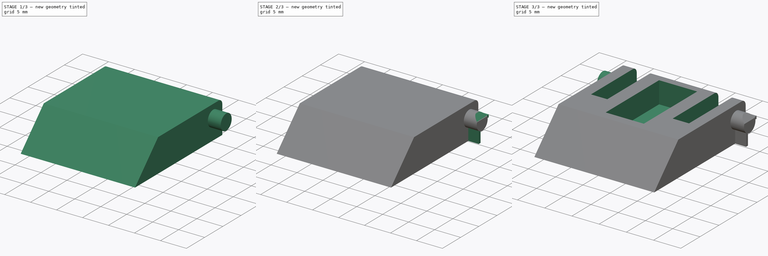
[diagram: build sequence overview — one tinted view per stage of 3, left to right]
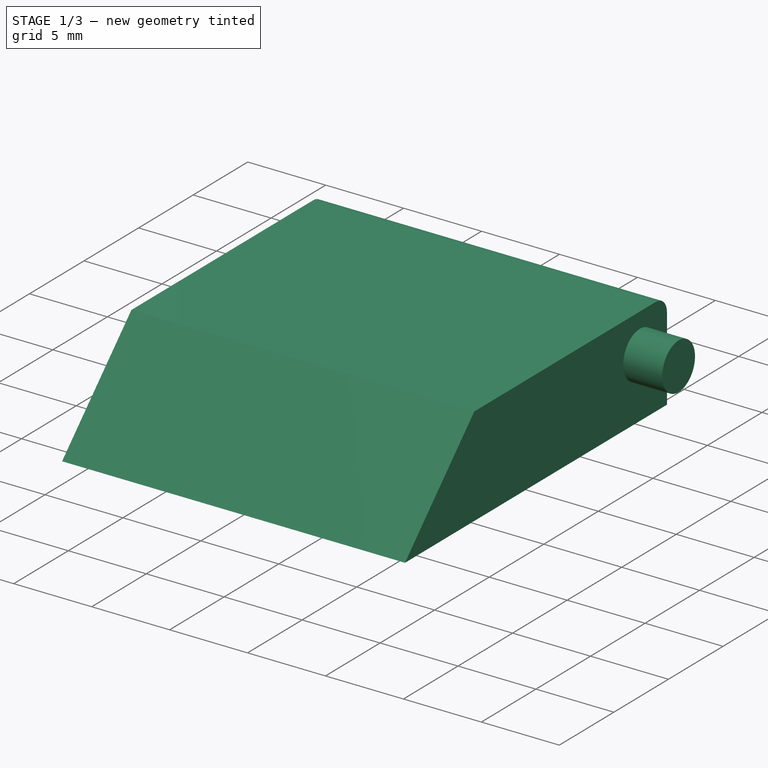
[diagram: stage 1 of 3 — iso view after this stage's code; geometry added in this stage tinted green]
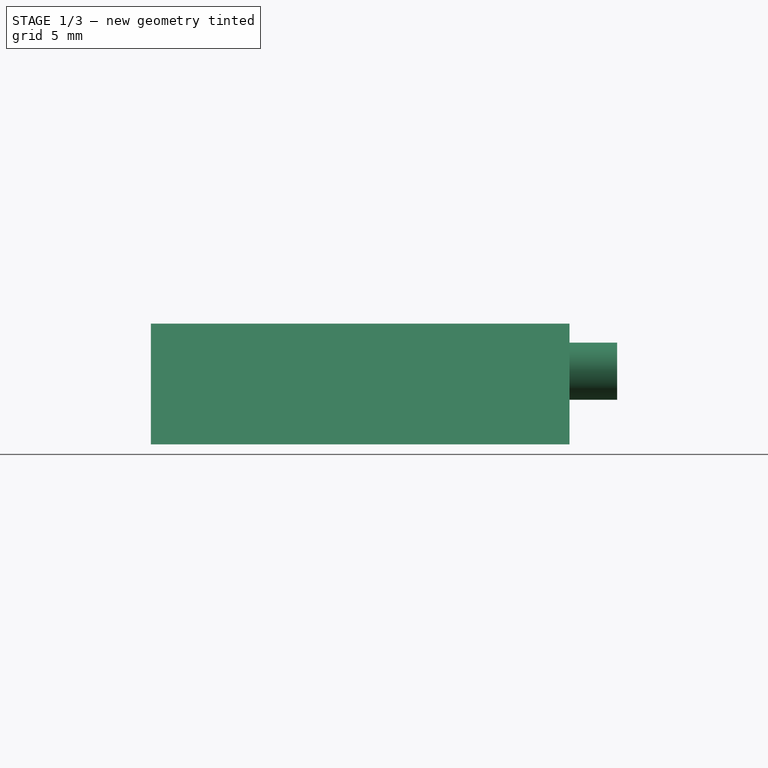
[diagram: stage 1 of 3 — front view after this stage's code; geometry added in this stage tinted green]
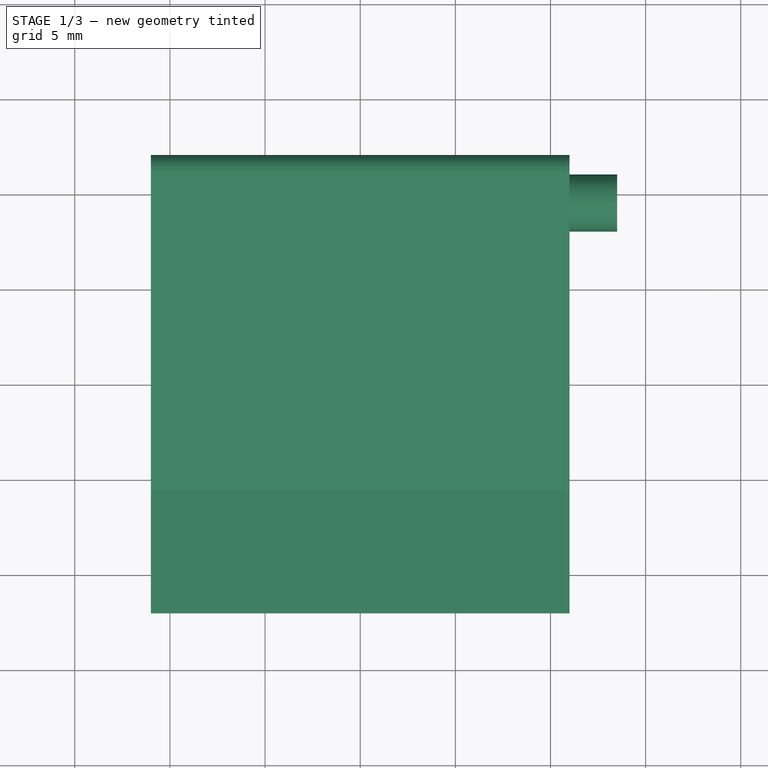
[diagram: stage 1 of 3 — top view after this stage's code; geometry added in this stage tinted green]
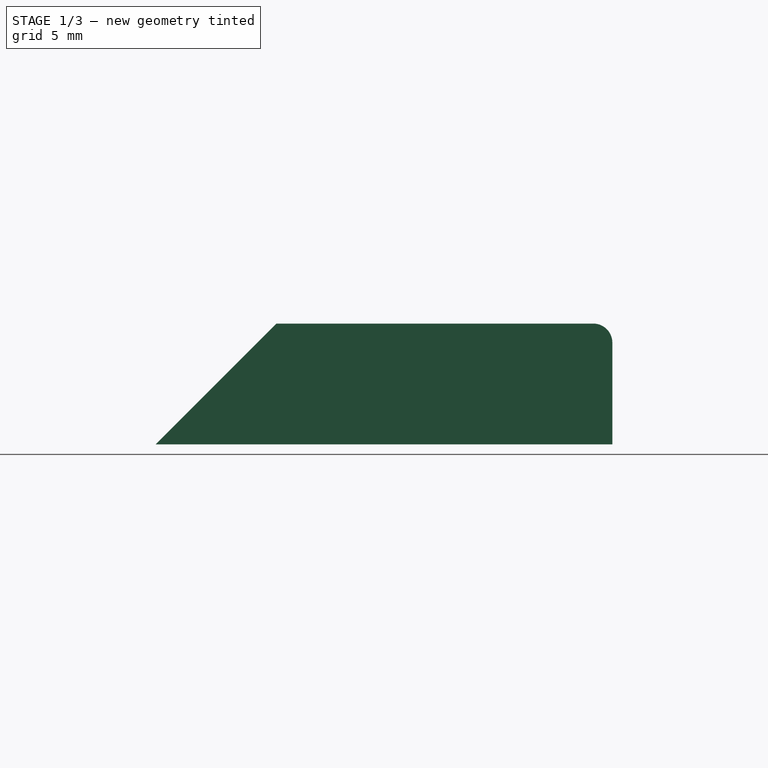
[diagram: stage 1 of 3 — right view after this stage's code; geometry added in this stage tinted green]
FCSTD DOCUMENT  (FreeCAD 1.1R38843 (Git))
Label: tilt leg
License: All rights reserved
LicenseURL: http://en.wikipedia.org/wiki/All_rights_reserved
objects: Sketcher::SketchObject×6, PartDesign::Pad×3, PartDesign::Pocket×2, PartDesign::Mirrored×1, PartDesign::Body×1
note: 30 computed .brp shape members not serialized (recipe doc carries the construction recipe); baked Part::Feature solids carry a one-line shape summary decoded from their .brp

FEATURE [Sketcher::SketchObject] Sketch
  ArcFitTolerance = 0
  AttachmentSupport = -> [XY_Plane]
  FullyConstrained = true
  MakeInternals = false
  MapMode = 5
  sketch-geometry (4):
    g0: LineSegment StartX=-11 StartY=12 StartZ=0 EndX=-11 EndY=-12 EndZ=0
    g1: LineSegment StartX=-11 StartY=-12 StartZ=0 EndX=11 EndY=-12 EndZ=0
    g2: LineSegment StartX=11 StartY=-12 StartZ=0 EndX=11 EndY=12 EndZ=0
    g3: LineSegment StartX=11 StartY=12 StartZ=0 EndX=-11 EndY=12 EndZ=0
  constraints (11):
    c: Coincident(g0,g1)
    c: Coincident(g1,g2)
    c: Coincident(g2,g3)
    c: Coincident(g3,g0)
    c: Vertical(g0)
    c: Vertical(g2)
    c: Horizontal(g1)
    c: Horizontal(g3)
    c: Symmetric(g0,g2,g-1)
    c: DistanceX(g3,g3) = 22
    c: DistanceY(g2,g2) = 24
FEATURE [Sketcher::SketchObject] Sketch001
  ArcFitTolerance = 0
  AttachmentSupport = -> [YZ_Plane]
  FullyConstrained = true
  MakeInternals = false
  MapMode = 5
  Placement = pos=(0,0,0) rot=(0.57735,0.57735,0.57735;2.0944rad)
  sketch-geometry (6):
    g0: LineSegment StartX=-12 StartY=3e-16 StartZ=0 EndX=12 EndY=0 EndZ=0
    g1: LineSegment StartX=12 StartY=0 StartZ=0 EndX=12 EndY=5.35 EndZ=0
    g2: LineSegment StartX=11 StartY=6.35 StartZ=0 EndX=-5.65 EndY=6.35 EndZ=0
    g3: LineSegment StartX=-5.65 StartY=6.35 StartZ=0 EndX=-12 EndY=3e-16 EndZ=0
    g4: ArcOfCircle CenterX=11 CenterY=5.35 CenterZ=0 NormalX=0 NormalY=0 NormalZ=1 AngleXU=0 Radius=1 StartAngle=-1.8e-15 EndAngle=1.5708
    g5: GeomPoint [constr] X=12 Y=6.35 Z=0
  constraints (15):
    c: Coincident(g0,g1)
    c: Vertical(g1)
    c: Horizontal(g2)
    c: Coincident(g2,g3)
    c: Coincident(g3,g0)
    c: DistanceX(g0,g0) = 24
    c: Symmetric(g0,g0,g-2)
    c: Angle(g0,g3) = 0.785398
    c: DistanceY(g1,g5) = 6.35
    c: PointOnObject(g0,g-1)
    c: PointOnObject(g5,g2)
    c: PointOnObject(g5,g1)
    c: Tangent(g2,g4) = -1.5708
    c: Tangent(g1,g4) = -1.5708
    c: Radius(g4) = 1
FEATURE [PartDesign::Pad] Pad
  Direction = (1,0,0)
  Length = 22
  Length2 = 10
  Midplane = true
  Placement = pos=(0,0,0) rot=(1,1,1;2.0944rad)
  Profile = -> Sketch001
  ReferenceAxis = -> Sketch001 [N_Axis]
  Suppressed = false
  Type = 0
FEATURE [Sketcher::SketchObject] Sketch002
  ArcFitTolerance = 0
  AttachmentSupport = -> [Pad]
  ExternalGeometry = -> [Pad]
  FullyConstrained = true
  MakeInternals = false
  MapMode = 5
  Placement = pos=(11,-2.4e-15,1.2e-15) rot=(0.57735,0.57735,0.57735;2.0944rad)
  sketch-geometry (1):
    g0: Circle CenterX=9.5 CenterY=3.85 CenterZ=0 NormalX=0 NormalY=0 NormalZ=1 AngleXU=0 Radius=1.5
  constraints (3):
    c: Diameter(g0) = 3
    c: DistanceY(g0,g-3) = 2.5
    c: DistanceX(g0,g-4) = 2.5
FEATURE [PartDesign::Pad] Pad001
  BaseFeature = -> Pad
  Direction = (1,0,0)
  Length = 2.5
  Length2 = 10
  Placement = pos=(0,0,0) rot=(1,1,1;2.0944rad)
  Profile = -> Sketch002
  ReferenceAxis = -> Sketch002 [N_Axis]
  Suppressed = false
  Type = 0
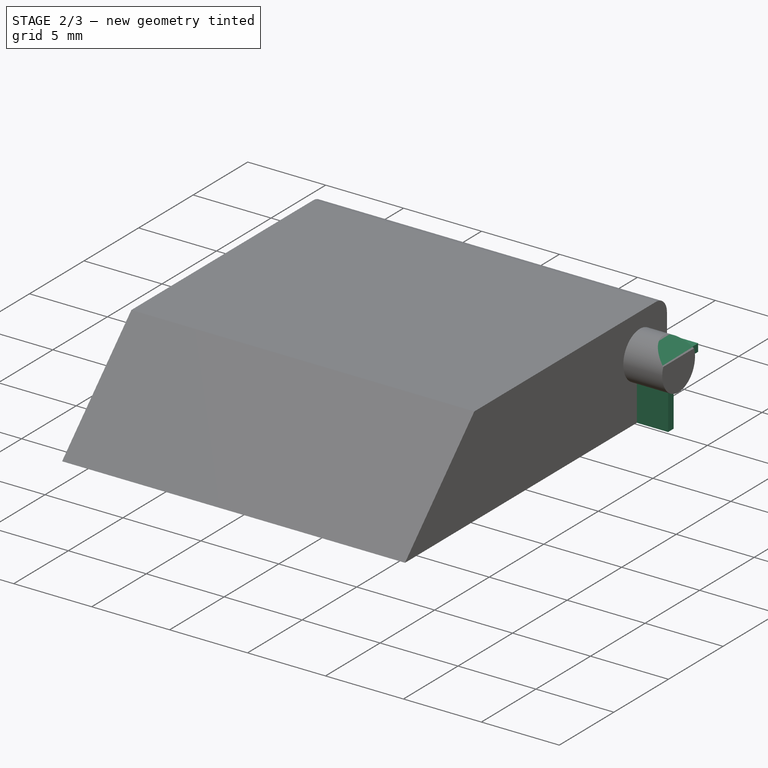
[diagram: stage 2 of 3 — iso view after this stage's code; geometry added in this stage tinted green]
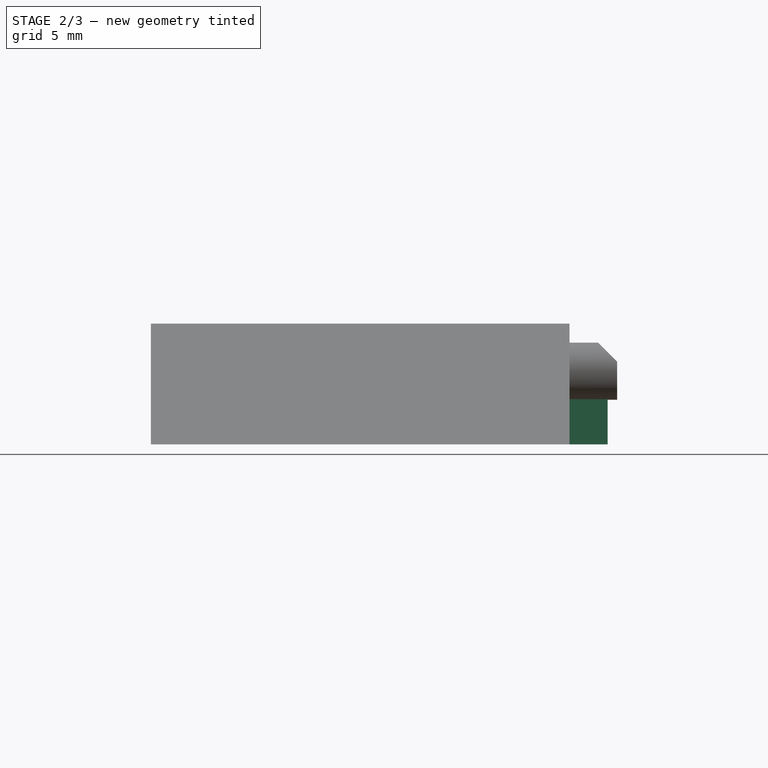
[diagram: stage 2 of 3 — front view after this stage's code; geometry added in this stage tinted green]
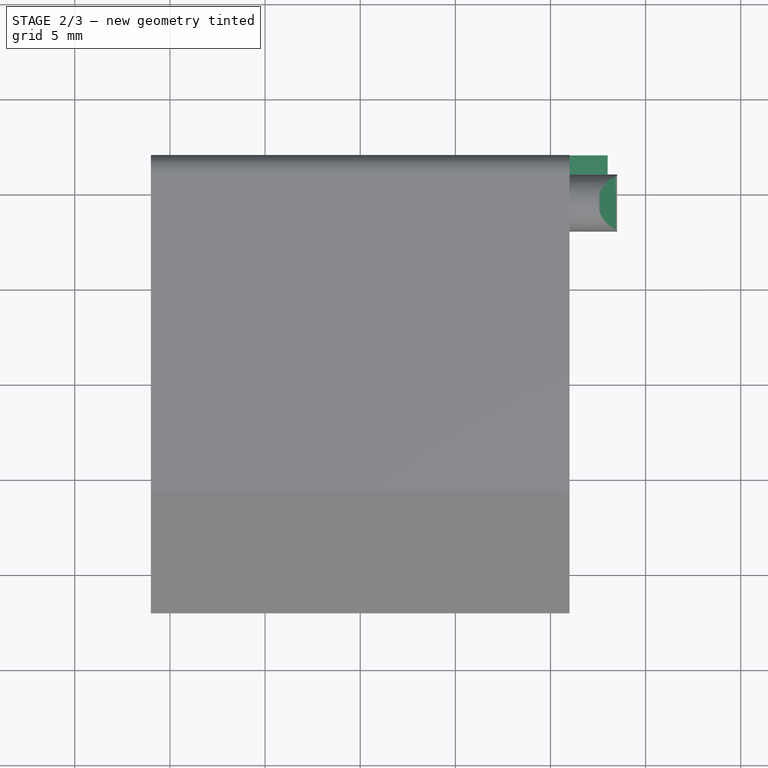
[diagram: stage 2 of 3 — top view after this stage's code; geometry added in this stage tinted green]
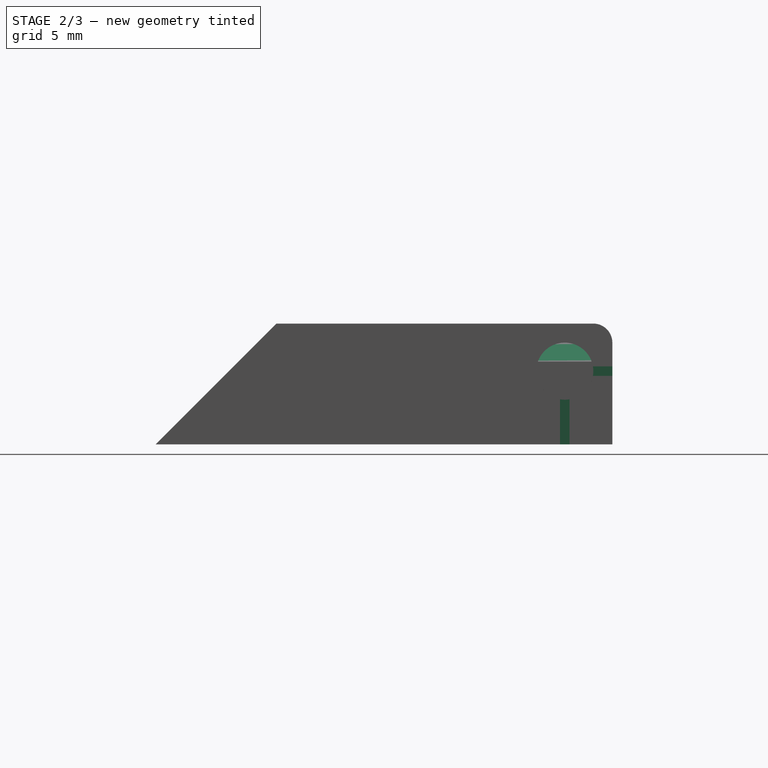
[diagram: stage 2 of 3 — right view after this stage's code; geometry added in this stage tinted green]
FEATURE [Sketcher::SketchObject] Sketch003
  ArcFitTolerance = 0
  AttachmentSupport = -> [Pad001]
  ExternalGeometry = -> [Pad001]
  FullyConstrained = true
  MakeInternals = false
  MapMode = 5
  Placement = pos=(2.7e-15,12,-5.3e-15) rot=(0.57735,0.57735,0.57735;4.18879rad)
  sketch-geometry (3):
    g0: LineSegment StartX=4.35 StartY=13.5 StartZ=0 EndX=5.35 EndY=13.5 EndZ=0
    g1: LineSegment StartX=5.35 StartY=13.5 StartZ=0 EndX=5.35 EndY=12.5 EndZ=0
    g2: LineSegment StartX=5.35 StartY=12.5 StartZ=0 EndX=4.35 EndY=13.5 EndZ=0
  constraints (8):
    c: Horizontal(g0)
    c: Coincident(g0,g1)
    c: Vertical(g1)
    c: Coincident(g1,g2)
    c: Equal(g0,g1)
    c: DistanceX(g0,g0) = 1
    c: Coincident(g0,g2)
    c: Coincident(g0,g-3)
FEATURE [PartDesign::Pocket] Pocket
  BaseFeature = -> Pad001
  Direction = (0,-1,0)
  Length = 5
  Length2 = 5
  Placement = pos=(0,0,0) rot=(1,1,1;2.0944rad)
  Profile = -> Sketch003
  ReferenceAxis = -> Sketch003 [N_Axis]
  Suppressed = false
  Type = 0
FEATURE [Sketcher::SketchObject] Sketch004
  ArcFitTolerance = 0
  AttachmentSupport = -> [Pocket]
  ExternalGeometry = -> [Pocket]
  FullyConstrained = true
  MakeInternals = false
  MapMode = 5
  Placement = pos=(11,-7.3e-15,3.7e-15) rot=(0.57735,0.57735,0.57735;2.0944rad)
  sketch-geometry (9):
    g0: LineSegment StartX=10 StartY=4.1 StartZ=0 EndX=10 EndY=3.6 EndZ=0
    g1: LineSegment StartX=10 StartY=3.6 StartZ=0 EndX=12 EndY=3.6 EndZ=0
    g2: LineSegment StartX=12 StartY=3.6 StartZ=0 EndX=12 EndY=4.1 EndZ=0
    g3: LineSegment StartX=12 StartY=4.1 StartZ=0 EndX=10 EndY=4.1 EndZ=0
    g4: GeomPoint [constr] X=12 Y=3.85 Z=0
    g5: LineSegment StartX=9.25 StartY=3.85 StartZ=0 EndX=9.25 EndY=0 EndZ=0
    g6: LineSegment StartX=9.25 StartY=0 StartZ=0 EndX=9.75 EndY=0 EndZ=0
    g7: LineSegment StartX=9.75 StartY=0 StartZ=0 EndX=9.75 EndY=3.85 EndZ=0
    g8: LineSegment StartX=9.75 StartY=3.85 StartZ=0 EndX=9.25 EndY=3.85 EndZ=0
  constraints (24):
    c: Coincident(g0,g1)
    c: Coincident(g1,g2)
    c: Coincident(g2,g3)
    c: Coincident(g3,g0)
    c: Vertical(g0)
    c: Vertical(g2)
    c: Horizontal(g1)
    c: Horizontal(g3)
    c: DistanceY(g2,g2) = 0.5
    c: DistanceX(g3,g3) = 2
    c: Symmetric(g1,g2,g4)
    c: Horizontal(g-4,g4)
    c: PointOnObject(g2,g-3)
    c: Coincident(g5,g6)
    c: Coincident(g6,g7)
    c: Coincident(g7,g8)
    c: Coincident(g8,g5)
    c: Vertical(g5)
    c: Vertical(g7)
    c: Horizontal(g6)
    c: Horizontal(g8)
    c: PointOnObject(g6,g-1)
    c: Symmetric(g7,g5,g-4)
    c: DistanceX(g6,g6) = 0.5
FEATURE [PartDesign::Pad] Pad002
  BaseFeature = -> Pocket
  Direction = (1,0,0)
  Length = 2
  Length2 = 10
  Placement = pos=(0,0,0) rot=(1,1,1;2.0944rad)
  Profile = -> Sketch004
  ReferenceAxis = -> Sketch004 [N_Axis]
  Suppressed = false
  Type = 0
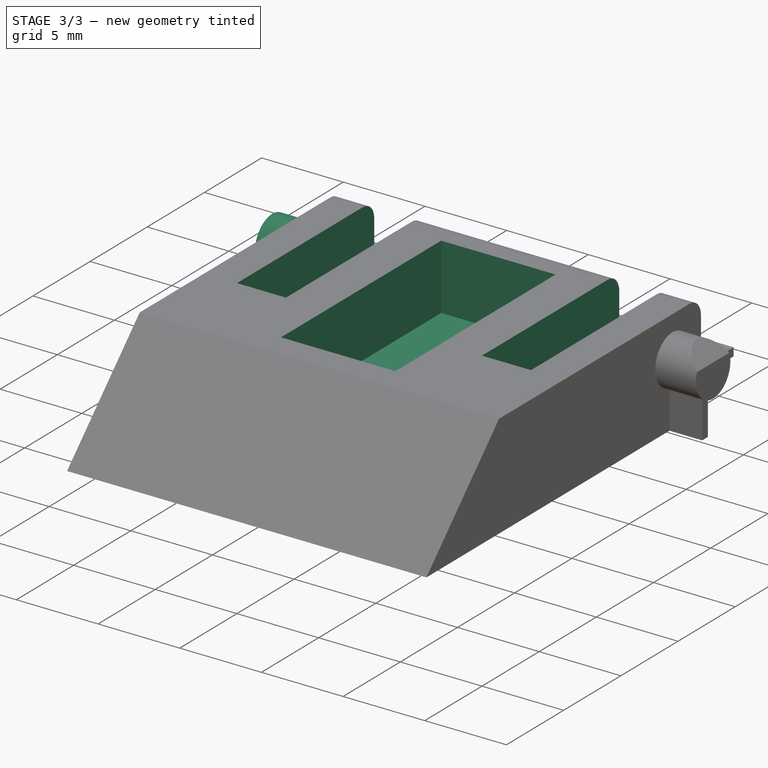
[diagram: stage 3 of 3 — iso view after this stage's code; geometry added in this stage tinted green]
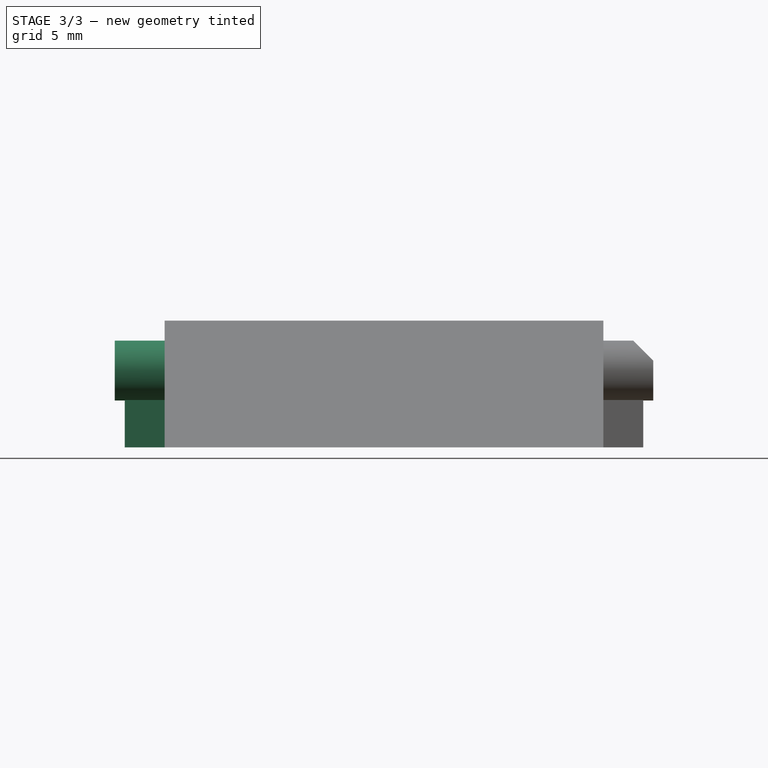
[diagram: stage 3 of 3 — front view after this stage's code; geometry added in this stage tinted green]
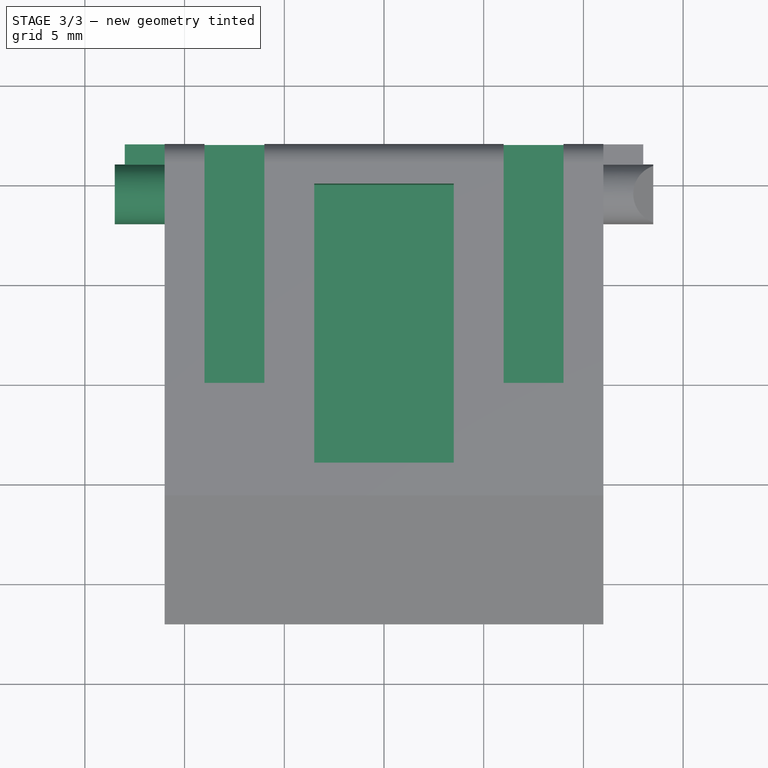
[diagram: stage 3 of 3 — top view after this stage's code; geometry added in this stage tinted green]
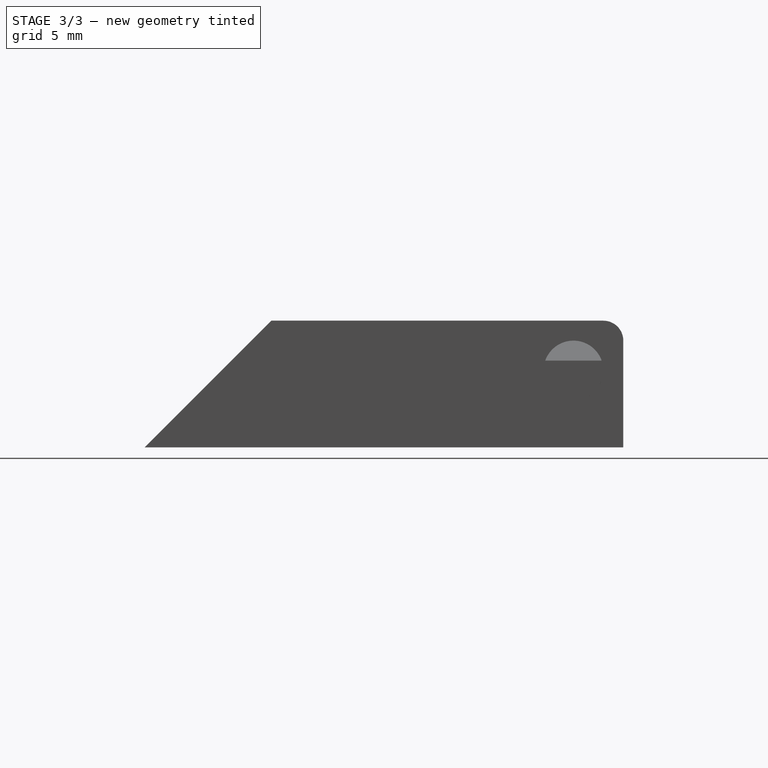
[diagram: stage 3 of 3 — right view after this stage's code; geometry added in this stage tinted green]
FEATURE [PartDesign::Mirrored] Mirrored
  BaseFeature = -> Pad002
  MirrorPlane = -> YZ_Plane
  Originals = -> [Pad002,Pocket,Pad001]
  Placement = pos=(0,0,0) rot=(1,1,1;2.0944rad)
  Suppressed = false
  TransformMode = 0
FEATURE [Sketcher::SketchObject] Sketch005
  ArcFitTolerance = 0
  AttachmentSupport = -> [Mirrored]
  FullyConstrained = true
  MakeInternals = false
  MapMode = 5
  Placement = pos=(-7e-15,4.2e-15,6.35) rot=(0,0,-1;1.5708rad)
  sketch-geometry (12):
    g0: LineSegment StartX=-10 StartY=3.5 StartZ=0 EndX=-10 EndY=-3.5 EndZ=0
    g1: LineSegment StartX=-10 StartY=-3.5 StartZ=0 EndX=4 EndY=-3.5 EndZ=0
    g2: LineSegment StartX=4 StartY=-3.5 StartZ=0 EndX=4 EndY=3.5 EndZ=0
    g3: LineSegment StartX=4 StartY=3.5 StartZ=0 EndX=-10 EndY=3.5 EndZ=0
    g4: LineSegment StartX=-16 StartY=9 StartZ=0 EndX=-16 EndY=6 EndZ=0
    g5: LineSegment StartX=-16 StartY=6 StartZ=0 EndX=0 EndY=6 EndZ=0
    g6: LineSegment StartX=0 StartY=6 StartZ=0 EndX=0 EndY=9 EndZ=0
    g7: LineSegment StartX=0 StartY=9 StartZ=0 EndX=-16 EndY=9 EndZ=0
    g8: LineSegment StartX=-16 StartY=-6 StartZ=0 EndX=-16 EndY=-9 EndZ=0
    g9: LineSegment StartX=-16 StartY=-9 StartZ=0 EndX=0 EndY=-9 EndZ=0
    g10: LineSegment StartX=0 StartY=-9 StartZ=0 EndX=0 EndY=-6 EndZ=0
    g11: LineSegment StartX=0 StartY=-6 StartZ=0 EndX=-16 EndY=-6 EndZ=0
  constraints (34):
    c: Coincident(g0,g1)
    c: Coincident(g1,g2)
    c: Coincident(g2,g3)
    c: Coincident(g3,g0)
    c: Vertical(g0)
    c: Horizontal(g1)
    c: Horizontal(g3)
    c: DistanceY(g2,g2) = 7
    c: DistanceX(g3,g3) = 14
    c: Symmetric(g2,g1,g-1)
    c: Coincident(g4,g5)
    c: Coincident(g5,g6)
    c: Coincident(g6,g7)
    c: Coincident(g7,g4)
    c: Vertical(g4)
    c: Vertical(g6)
    c: Horizontal(g5)
    c: Horizontal(g7)
    c: DistanceY(g4,g4) = 3
    c: PointOnObject(g6,g-2)
    c: DistanceY(g-1,g5) = 6
    c: Coincident(g8,g9)
    c: Coincident(g9,g10)
    c: Coincident(g10,g11)
    c: Coincident(g11,g8)
    c: Vertical(g8)
    c: Vertical(g10)
    c: Horizontal(g9)
    c: Horizontal(g11)
    c: Equal(g8,g4)
    c: Equal(g5,g11)
    c: Symmetric(g5,g10,g-1)
    c: DistanceX(g9,g9) = 16
    c: DistanceX(g-1,g2) = 4
FEATURE [PartDesign::Pocket] Pocket001
  BaseFeature = -> Mirrored
  Direction = (1.1e-15,0,-1)
  Length = 4
  Length2 = 5
  Placement = pos=(0,0,0) rot=(1,1,1;2.0944rad)
  Profile = -> Sketch005
  ReferenceAxis = -> Sketch005 [N_Axis]
  Suppressed = false
  Type = 0
FEATURE [PartDesign::Body] Body
  AllowCompound = false
  Group = -> [Sketch,Sketch001,Pad,Sketch002,Pad001,Sketch003,Pocket,Sketch004,Pad002,Mirrored,Sketch005,Pocket001]
  Origin = -> Origin
  Tip = -> Pocket001
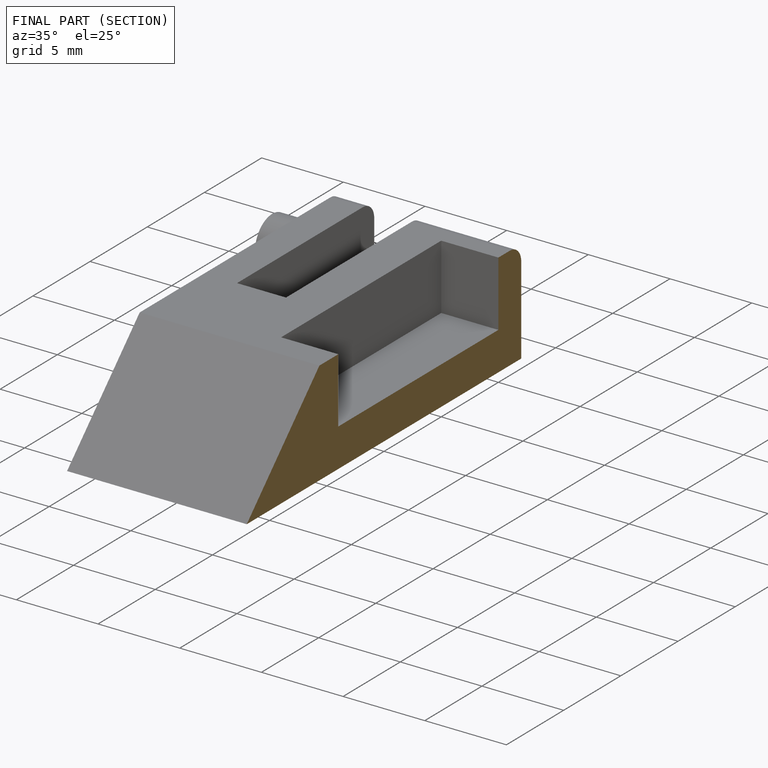
[diagram: finished part — half-section view (interior)]
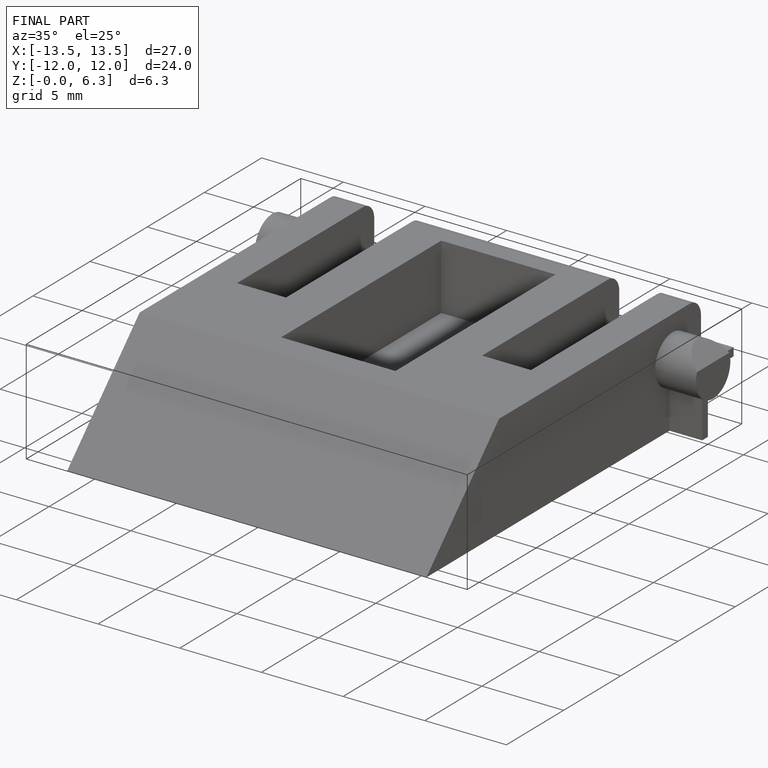
[diagram: finished part — iso view with bounding-box wireframe]
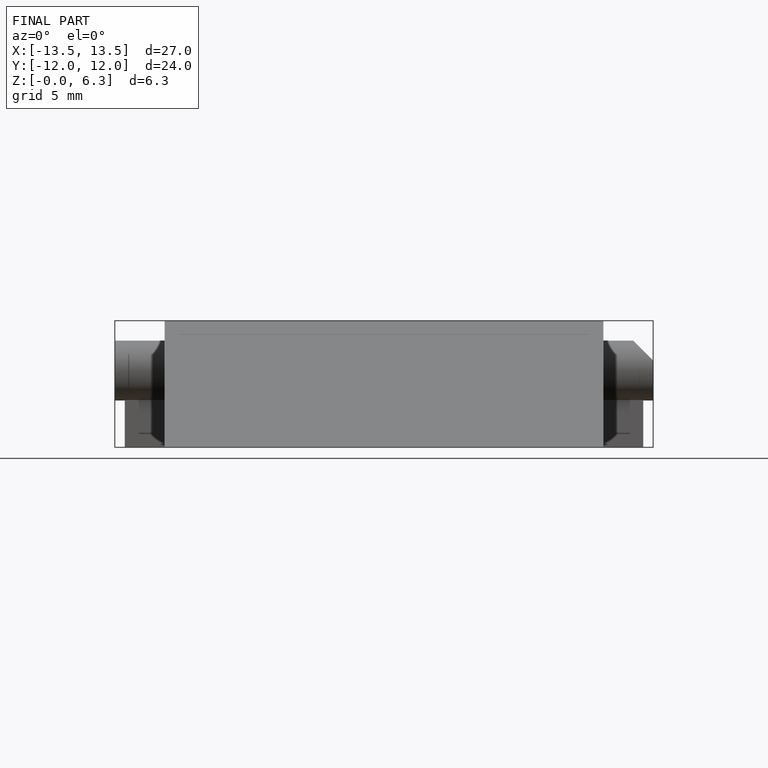
[diagram: finished part — front view with bounding-box wireframe]
